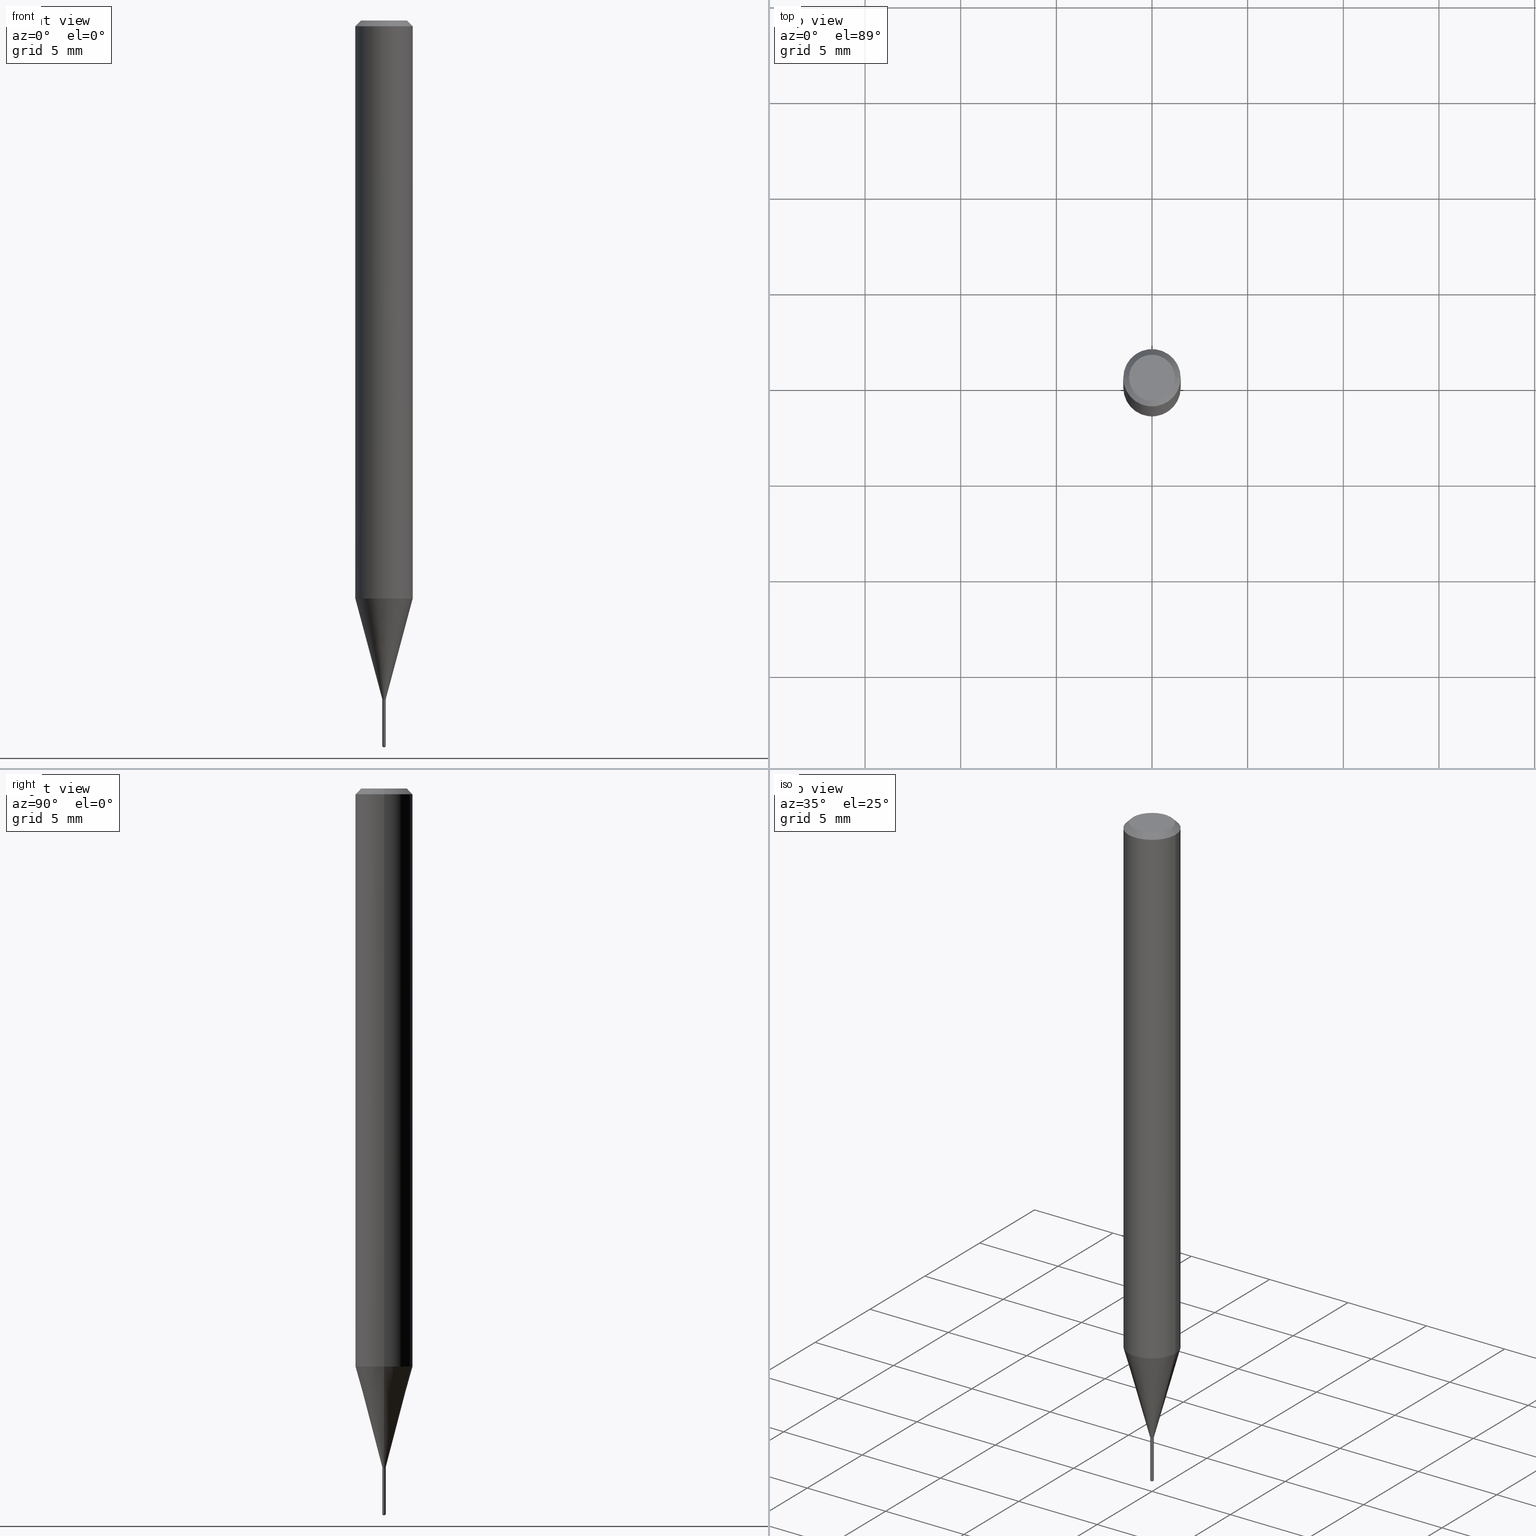
[diagram: canonical four-view strip — front | top / right | iso, engineering-drawing reading convention]
A machine part, canonical four-view strip (front | top / right | iso — engineering-drawing reading convention). The complete STEP part file that produces these views, byte-faithful:
ISO-10303-21;
HEADER;
FILE_DESCRIPTION (( 'STEP AP203' ),
    '1' );
FILE_NAME ('08242.STEP',
    '2024-04-24T13:54:28',
    ( '' ),
    ( '' ),
    'SwSTEP 2.0',
    'SolidWorks 2023',
    '' );
FILE_SCHEMA (( 'CONFIG_CONTROL_DESIGN' ));
ENDSEC;

DATA;
#1 = EDGE_LOOP ( 'NONE', ( #207, #292, #145 ) ) ;
#2 = APPROVAL_DATE_TIME ( #33, #22 ) ;
#3 = ORIENTED_EDGE ( 'NONE', *, *, #41, .T. ) ;
#4 = ADVANCED_FACE ( 'NONE', ( #255 ), #309, .T. ) ;
#5 = COORDINATED_UNIVERSAL_TIME_OFFSET ( 5, 0, .BEHIND. ) ;
#6 = DIRECTION ( 'NONE',  ( -2.445468806185136877E-29, 3.491481338843145188E-15, 1.000000000000000000 ) ) ;
#7 = ADVANCED_FACE ( 'NONE', ( #37 ), #468, .T. ) ;
#8 = LOCAL_TIME ( 9, 54, 28.00000000000000000, #157 ) ;
#9 = DIRECTION ( 'NONE',  ( 1.000000000000000000, -6.982962677686266711E-15, 4.876176775795935232E-29 ) ) ;
#10 = CALENDAR_DATE ( 2024, 24, 4 ) ;
#11 = CARTESIAN_POINT ( 'NONE',  ( 3.418031750404965246E-29, -4.880043467301064347E-15, -1.397699999999999942 ) ) ;
#12 = FACE_OUTER_BOUND ( 'NONE', #25, .T. ) ;
#13 = PRODUCT_RELATED_PRODUCT_CATEGORY ( 'detail', '', ( #142 ) ) ;
#14 = CIRCLE ( 'NONE', #271, 0.003549999999999997602 ) ;
#15 = DIRECTION ( 'NONE',  ( 1.000000000000000000, -6.982962677686266711E-15, 4.876176775795935232E-29 ) ) ;
#16 = MANIFOLD_SOLID_BREP ( 'Body-Move/Copy2[1]', #240 ) ;
#17 = DIRECTION ( 'NONE',  ( -2.445468806185136597E-29, 3.491481338843145583E-15, 1.000000000000000000 ) ) ;
#18 = ADVANCED_FACE ( 'NONE', ( #75 ), #452, .T. ) ;
#19 = EDGE_CURVE ( 'NONE', #433, #321, #377, .T. ) ;
#20 = DIRECTION ( 'NONE',  ( 2.445468806185136597E-29, -3.491481338843145583E-15, -1.000000000000000000 ) ) ;
#21 = ORIENTED_EDGE ( 'NONE', *, *, #177, .F. ) ;
#22 = APPROVAL ( #188, 'UNSPECIFIED' ) ;
#23 = CARTESIAN_POINT ( 'NONE',  ( 3.416809016001873005E-29, -4.878297726631642843E-15, -1.397199999999999998 ) ) ;
#24 = CONICAL_SURFACE ( 'NONE', #110, 0.05904999999999999832, 0.7853981633974452814 ) ;
#25 = EDGE_LOOP ( 'NONE', ( #376, #185 ) ) ;
#26 = APPLICATION_CONTEXT ( 'configuration controlled 3d designs of mechanical parts and assemblies' ) ;
#27 = DIRECTION ( 'NONE',  ( -2.445468806185136597E-29, 3.491481338843145583E-15, 1.000000000000000000 ) ) ;
#28 = ORIENTED_EDGE ( 'NONE', *, *, #469, .F. ) ;
#29 = CARTESIAN_POINT ( 'NONE',  ( -0.003050000000000000194, -4.858371913860381312E-15, -1.397699999999999942 ) ) ;
#30 = EDGE_LOOP ( 'NONE', ( #135, #73, #285, #474 ) ) ;
#31 = DIRECTION ( 'NONE',  ( -0.7071067811866172947, 7.493145998870606596E-15, 0.7071067811864777397 ) ) ;
#32 = VERTEX_POINT ( 'NONE', #40 ) ;
#33 = DATE_AND_TIME ( #67, #204 ) ;
#34 = CARTESIAN_POINT ( 'NONE',  ( 2.888098660104663766E-31, -4.123439461173779647E-17, -0.01181000000000007044 ) ) ;
#35 = DIRECTION ( 'NONE',  ( 1.000000000000000000, -6.982962677686126293E-15, 0.000000000000000000 ) ) ;
#36 = ORIENTED_EDGE ( 'NONE', *, *, #477, .F. ) ;
#37 = FACE_OUTER_BOUND ( 'NONE', #488, .T. ) ;
#38 = AXIS2_PLACEMENT_3D ( 'NONE', #39, #225, #333 ) ;
#39 = CARTESIAN_POINT ( 'NONE',  ( 0.000000000000000000, 0.000000000000000000, 0.000000000000000000 ) ) ;
#40 = CARTESIAN_POINT ( 'NONE',  ( 2.522426711952008601E-17, 0.003549999999994783457, -1.493966944802452179 ) ) ;
#41 = EDGE_CURVE ( 'NONE', #226, #417, #345, .T. ) ;
#42 = DATE_TIME_ROLE ( 'creation_date' ) ;
#43 = DIRECTION ( 'NONE',  ( -2.438391634766764879E-29, 3.501616251121835716E-15, 1.000000000000000000 ) ) ;
#44 = CARTESIAN_POINT ( 'NONE',  ( 0.000000000000000000, 0.000000000000000000, 0.000000000000000000 ) ) ;
#45 = CIRCLE ( 'NONE', #489, 0.05905000000000014404 ) ;
#46 = CIRCLE ( 'NONE', #272, 0.003549999999999997602 ) ;
#47 = CALENDAR_DATE ( 2024, 24, 4 ) ;
#48 = SECURITY_CLASSIFICATION ( '', '', #197 ) ;
#49 = CARTESIAN_POINT ( 'NONE',  ( -0.05905000000000006771, 4.195754854663396409E-16, -2.904631170795525045E-30 ) ) ;
#50 = PERSON_AND_ORGANIZATION ( #283, #137 ) ;
#51 = CARTESIAN_POINT ( 'NONE',  ( 0.000000000000000000, 0.000000000000000000, 0.000000000000000000 ) ) ;
#52 = CARTESIAN_POINT ( 'NONE',  ( 3.415341734718161419E-29, -4.876202837828336250E-15, -1.396599999999999842 ) ) ;
#53 = AXIS2_PLACEMENT_3D ( 'NONE', #434, #216, #363 ) ;
#54 = CARTESIAN_POINT ( 'NONE',  ( -2.478951750574971943E-17, -0.003550000000005218252, -1.493966944802452179 ) ) ;
#55 = CARTESIAN_POINT ( 'NONE',  ( 0.003549999999999997602, -4.900992355334122390E-15, -1.396599999999999842 ) ) ;
#56 = EDGE_LOOP ( 'NONE', ( #339, #440, #101, #36 ) ) ;
#57 = DIRECTION ( 'NONE',  ( -2.445468806185136597E-29, 3.491481338843145583E-15, 1.000000000000000000 ) ) ;
#58 = ORIENTED_EDGE ( 'NONE', *, *, #315, .F. ) ;
#59 = CARTESIAN_POINT ( 'NONE',  ( -0.003050000000000000194, -4.855722686686270899E-15, -1.397699999999999942 ) ) ;
#60 = AXIS2_PLACEMENT_3D ( 'NONE', #308, #267, #126 ) ;
#61 = CIRCLE ( 'NONE', #117, 0.003549999999999998036 ) ;
#62 = EDGE_LOOP ( 'NONE', ( #393, #114, #21, #379 ) ) ;
#63 = CARTESIAN_POINT ( 'NONE',  ( 3.648077724774556569E-29, -5.238768073303377996E-15, -1.496099999999999985 ) ) ;
#64 = EDGE_LOOP ( 'NONE', ( #317, #260 ) ) ;
#65 = DIRECTION ( 'NONE',  ( 1.000000000000000000, -6.982962677686295898E-15, 0.000000000000000000 ) ) ;
#66 = ORIENTED_EDGE ( 'NONE', *, *, #19, .F. ) ;
#67 = CALENDAR_DATE ( 2024, 24, 4 ) ;
#68 = DIMENSIONAL_EXPONENTS ( 1.000000000000000000, 0.000000000000000000, 0.000000000000000000, 0.000000000000000000, 0.000000000000000000, 0.000000000000000000, 0.000000000000000000 ) ;
#69 = ORIENTED_EDGE ( 'NONE', *, *, #483, .F. ) ;
#70 = CIRCLE ( 'NONE', #288, 0.003550000000000000204 ) ;
#71 = DIRECTION ( 'NONE',  ( -2.438391634766764879E-29, 3.501616251121835322E-15, 1.000000000000000000 ) ) ;
#72 = ORIENTED_EDGE ( 'NONE', *, *, #111, .F. ) ;
#73 = ORIENTED_EDGE ( 'NONE', *, *, #408, .T. ) ;
#74 = APPLICATION_PROTOCOL_DEFINITION ( 'international standard', 'config_control_design', 1994, #268 ) ;
#75 = FACE_OUTER_BOUND ( 'NONE', #62, .T. ) ;
#76 = AXIS2_PLACEMENT_3D ( 'NONE', #306, #269, #194 ) ;
#77 = DIRECTION ( 'NONE',  ( -0.2588190451025211836, 5.211531920934547886E-15, 0.9659258262890679791 ) ) ;
#78 = DIRECTION ( 'NONE',  ( 1.000000000000000000, -6.982962677686266711E-15, 4.876185090822587894E-29 ) ) ;
#79 = CC_DESIGN_PERSON_AND_ORGANIZATION_ASSIGNMENT ( #420, #460, ( #328 ) ) ;
#80 = APPROVAL_ROLE ( '' ) ;
#81 = FACE_OUTER_BOUND ( 'NONE', #112, .T. ) ;
#82 = DIRECTION ( 'NONE',  ( -2.438391634766764879E-29, 3.501616251121835716E-15, 1.000000000000000000 ) ) ;
#83 = CONICAL_SURFACE ( 'NONE', #60, 65.52281426576847423, 1.029744258676654756 ) ;
#84 = CIRCLE ( 'NONE', #91, 0.003050000000000000194 ) ;
#85 = FACE_OUTER_BOUND ( 'NONE', #287, .T. ) ;
#86 = FACE_OUTER_BOUND ( 'NONE', #56, .T. ) ;
#87 = CALENDAR_DATE ( 2024, 24, 4 ) ;
#88 = EDGE_CURVE ( 'NONE', #32, #325, #147, .T. ) ;
#89 = PLANE ( 'NONE',  #129 ) ;
#90 = EDGE_CURVE ( 'NONE', #395, #360, #479, .T. ) ;
#91 = AXIS2_PLACEMENT_3D ( 'NONE', #115, #329, #35 ) ;
#92 = LINE ( 'NONE', #242, #462 ) ;
#93 = ADVANCED_FACE ( 'NONE', ( #183 ), #229, .T. ) ;
#94 = CARTESIAN_POINT ( 'NONE',  ( 3.416809016001873005E-29, -4.878297726631642843E-15, -1.397199999999999998 ) ) ;
#95 = ORIENTED_EDGE ( 'NONE', *, *, #111, .T. ) ;
#96 = DIRECTION ( 'NONE',  ( -1.000000000000000000, 6.982962677686265922E-15, -4.876176775795935793E-29 ) ) ;
#97 = ORIENTED_EDGE ( 'NONE', *, *, #176, .T. ) ;
#98 = DIRECTION ( 'NONE',  ( 1.000000000000000000, -6.982962677686272233E-15, 0.000000000000000000 ) ) ;
#99 = CIRCLE ( 'NONE', #76, 0.003550000000000000204 ) ;
#100 = VECTOR ( 'NONE', #107, 39.37007874015748143 ) ;
#101 = ORIENTED_EDGE ( 'NONE', *, *, #355, .F. ) ;
#102 = FACE_OUTER_BOUND ( 'NONE', #64, .T. ) ;
#103 = VERTEX_POINT ( 'NONE', #486 ) ;
#104 = CARTESIAN_POINT ( 'NONE',  ( -0.003549999999999997602, -4.850978570708852316E-15, -1.396599999999999842 ) ) ;
#105 = EDGE_CURVE ( 'NONE', #103, #180, #45, .T. ) ;
#106 = VERTEX_POINT ( 'NONE', #457 ) ;
#107 = DIRECTION ( 'NONE',  ( -2.445468806185136877E-29, 3.491481338843145188E-15, 1.000000000000000000 ) ) ;
#108 = AXIS2_PLACEMENT_3D ( 'NONE', #424, #381, #119 ) ;
#109 = DIRECTION ( 'NONE',  ( -6.982962677686264344E-15, -1.000000000000000000, 3.468864327941591848E-15 ) ) ;
#110 = AXIS2_PLACEMENT_3D ( 'NONE', #250, #20, #166 ) ;
#111 = EDGE_CURVE ( 'NONE', #417, #153, #14, .T. ) ;
#112 = EDGE_LOOP ( 'NONE', ( #265, #246, #435, #217 ) ) ;
#113 =( NAMED_UNIT ( * ) PLANE_ANGLE_UNIT ( ) SI_UNIT ( $, .RADIAN. ) );
#114 = ORIENTED_EDGE ( 'NONE', *, *, #88, .T. ) ;
#115 = CARTESIAN_POINT ( 'NONE',  ( 3.418031750404965246E-29, -4.880043467301064347E-15, -1.397699999999999942 ) ) ;
#116 = DIRECTION ( 'NONE',  ( 1.000000000000000000, -6.982962677686266711E-15, 0.000000000000000000 ) ) ;
#117 = AXIS2_PLACEMENT_3D ( 'NONE', #23, #247, #65 ) ;
#118 = DIRECTION ( 'NONE',  ( -2.445468806185136597E-29, 3.491481338843145583E-15, 1.000000000000000000 ) ) ;
#119 = DIRECTION ( 'NONE',  ( 1.000000000000000000, -6.982962677686126293E-15, 0.000000000000000000 ) ) ;
#120 = PRODUCT_DEFINITION_SHAPE ( 'NONE', 'NONE',  #127 ) ;
#121 = SHAPE_DEFINITION_REPRESENTATION ( #120, #294 ) ;
#122 = LINE ( 'NONE', #49, #337 ) ;
#123 = VECTOR ( 'NONE', #322, 39.37007874015748854 ) ;
#124 = CC_DESIGN_SECURITY_CLASSIFICATION ( #48, ( #328 ) ) ;
#125 = LINE ( 'NONE', #237, #266 ) ;
#126 = DIRECTION ( 'NONE',  ( -6.982962677686264344E-15, -1.000000000000000000, 3.468864327941591848E-15 ) ) ;
#127 = PRODUCT_DEFINITION ( 'UNKNOWN', '', #328, #456 ) ;
#128 = CARTESIAN_POINT ( 'NONE',  ( 3.418031750404965246E-29, -4.880043467301064347E-15, -1.397699999999999942 ) ) ;
#129 = AXIS2_PLACEMENT_3D ( 'NONE', #311, #465, #239 ) ;
#130 = CARTESIAN_POINT ( 'NONE',  ( 2.908814666986231247E-29, -4.153016428689947803E-15, -1.189471180179926924 ) ) ;
#131 = ORIENTED_EDGE ( 'NONE', *, *, #212, .F. ) ;
#132 = DIRECTION ( 'NONE',  ( -2.438391634766764879E-29, 3.501616251121835716E-15, 1.000000000000000000 ) ) ;
#133 = EDGE_LOOP ( 'NONE', ( #221, #175, #173, #138 ) ) ;
#134 = FACE_OUTER_BOUND ( 'NONE', #358, .T. ) ;
#135 = ORIENTED_EDGE ( 'NONE', *, *, #331, .F. ) ;
#136 = LINE ( 'NONE', #432, #123 ) ;
#137 = ORGANIZATION ( 'UNSPECIFIED', 'UNSPECIFIED', '' ) ;
#138 = ORIENTED_EDGE ( 'NONE', *, *, #353, .F. ) ;
#139 = ADVANCED_FACE ( 'NONE', ( #86 ), #352, .T. ) ;
#140 = DIRECTION ( 'NONE',  ( 6.090539988449781591E-15, 0.8571673007021143320, 0.5150380749100510469 ) ) ;
#141 = VERTEX_POINT ( 'NONE', #201 ) ;
#142 = PRODUCT ( '08242', '08242', '', ( #262 ) ) ;
#143 = LENGTH_MEASURE_WITH_UNIT ( LENGTH_MEASURE( 0.02539999999999999897 ), #291 );
#144 = APPROVAL ( #274, 'UNSPECIFIED' ) ;
#145 = ORIENTED_EDGE ( 'NONE', *, *, #261, .F. ) ;
#146 = AXIS2_PLACEMENT_3D ( 'NONE', #418, #158, #15 ) ;
#147 = LINE ( 'NONE', #412, #203 ) ;
#148 = AXIS2_PLACEMENT_3D ( 'NONE', #198, #387, #461 ) ;
#149 = CARTESIAN_POINT ( 'NONE',  ( 2.888098660104663766E-31, -4.123439461173779647E-17, -0.01181000000000007044 ) ) ;
#150 = COORDINATED_UNIVERSAL_TIME_OFFSET ( 5, 0, .BEHIND. ) ;
#151 = CARTESIAN_POINT ( 'NONE',  ( 3.418031750404965246E-29, -4.880043467301064347E-15, -1.397699999999999942 ) ) ;
#152 = DATE_AND_TIME ( #346, #196 ) ;
#153 = VERTEX_POINT ( 'NONE', #205 ) ;
#154 = AXIS2_PLACEMENT_3D ( 'NONE', #128, #27, #214 ) ;
#155 = ADVANCED_FACE ( 'NONE', ( #164 ), #83, .T. ) ;
#156 = CYLINDRICAL_SURFACE ( 'NONE', #383, 0.05905000000000006771 ) ;
#157 = COORDINATED_UNIVERSAL_TIME_OFFSET ( 5, 0, .BEHIND. ) ;
#158 = DIRECTION ( 'NONE',  ( -2.445468806185136597E-29, 3.491481338843145583E-15, 1.000000000000000000 ) ) ;
#159 = APPROVAL ( #425, 'UNSPECIFIED' ) ;
#160 = APPROVAL_DATE_TIME ( #382, #159 ) ;
#161 = DIRECTION ( 'NONE',  ( -6.982962677686265922E-15, -1.000000000000000000, 0.000000000000000000 ) ) ;
#162 = AXIS2_PLACEMENT_3D ( 'NONE', #51, #199, #9 ) ;
#163 = PERSON_AND_ORGANIZATION_ROLE ( 'classification_officer' ) ;
#164 = FACE_OUTER_BOUND ( 'NONE', #1, .T. ) ;
#165 = DIRECTION ( 'NONE',  ( -6.982962677686266711E-15, -1.000000000000000000, 0.000000000000000000 ) ) ;
#166 = DIRECTION ( 'NONE',  ( -1.000000000000000000, 6.982962677686266711E-15, 0.000000000000000000 ) ) ;
#167 = ORIENTED_EDGE ( 'NONE', *, *, #41, .F. ) ;
#168 = CIRCLE ( 'NONE', #362, 0.003550000000000001071 ) ;
#169 = DIRECTION ( 'NONE',  ( -2.445468806185136597E-29, 3.491481338843145583E-15, 1.000000000000000000 ) ) ;
#170 = ADVANCED_FACE ( 'NONE', ( #351 ), #349, .T. ) ;
#171 = ORIENTED_EDGE ( 'NONE', *, *, #403, .T. ) ;
#172 = DIRECTION ( 'NONE',  ( 1.000000000000000000, -6.982962677686266711E-15, 4.876185090822587894E-29 ) ) ;
#173 = ORIENTED_EDGE ( 'NONE', *, *, #315, .T. ) ;
#174 = CARTESIAN_POINT ( 'NONE',  ( -0.05904999999999999832, -1.677549926184502089E-15, -0.01181000000000007044 ) ) ;
#175 = ORIENTED_EDGE ( 'NONE', *, *, #332, .T. ) ;
#176 = EDGE_CURVE ( 'NONE', #180, #360, #122, .T. ) ;
#177 = EDGE_CURVE ( 'NONE', #106, #325, #99, .T. ) ;
#178 = CARTESIAN_POINT ( 'NONE',  ( 0.000000000000000000, 0.000000000000000000, 0.000000000000000000 ) ) ;
#179 = AXIS2_PLACEMENT_3D ( 'NONE', #466, #132, #478 ) ;
#180 = VERTEX_POINT ( 'NONE', #356 ) ;
#181 = CC_DESIGN_PERSON_AND_ORGANIZATION_ASSIGNMENT ( #441, #406, ( #142 ) ) ;
#182 = COORDINATED_UNIVERSAL_TIME_OFFSET ( 5, 0, .BEHIND. ) ;
#183 = FACE_OUTER_BOUND ( 'NONE', #364, .T. ) ;
#184 = FACE_OUTER_BOUND ( 'NONE', #401, .T. ) ;
#185 = ORIENTED_EDGE ( 'NONE', *, *, #192, .T. ) ;
#186 = CARTESIAN_POINT ( 'NONE',  ( -9.234170117284283212E-28, 1.326343050180702537E-13, 37.87397874015748300 ) ) ;
#187 = VECTOR ( 'NONE', #281, 39.37007874015748143 ) ;
#188 = APPROVAL_STATUS ( 'not_yet_approved' ) ;
#189 = CARTESIAN_POINT ( 'NONE',  ( 8.265746106709734507E-48, -1.180129479067563789E-33, -3.380025165646692144E-19 ) ) ;
#190 = COORDINATED_UNIVERSAL_TIME_OFFSET ( 5, 0, .BEHIND. ) ;
#191 = DIRECTION ( 'NONE',  ( -6.982962677686265922E-15, -1.000000000000000000, 0.000000000000000000 ) ) ;
#192 = EDGE_CURVE ( 'NONE', #325, #106, #70, .T. ) ;
#193 = ADVANCED_FACE ( 'NONE', ( #273 ), #389, .F. ) ;
#194 = DIRECTION ( 'NONE',  ( -6.982962677686265922E-15, -1.000000000000000000, 0.000000000000000000 ) ) ;
#195 = AXIS2_PLACEMENT_3D ( 'NONE', #284, #437, #172 ) ;
#196 = LOCAL_TIME ( 9, 54, 28.00000000000000000, #190 ) ;
#197 = SECURITY_CLASSIFICATION_LEVEL ( 'unclassified' ) ;
#198 = CARTESIAN_POINT ( 'NONE',  ( 3.418031750404965246E-29, -4.880043467301064347E-15, -1.397699999999999942 ) ) ;
#199 = DIRECTION ( 'NONE',  ( -2.445468806185136597E-29, 3.491481338843145583E-15, 1.000000000000000000 ) ) ;
#200 = PERSON_AND_ORGANIZATION ( #283, #137 ) ;
#201 = CARTESIAN_POINT ( 'NONE',  ( 0.003050000000000000194, -4.901341503468007479E-15, -1.397699999999999942 ) ) ;
#202 = CC_DESIGN_DATE_AND_TIME_ASSIGNMENT ( #344, #42, ( #127 ) ) ;
#203 = VECTOR ( 'NONE', #295, 39.37007874015748143 ) ;
#204 = LOCAL_TIME ( 9, 54, 28.00000000000000000, #150 ) ;
#205 = CARTESIAN_POINT ( 'NONE',  ( -0.003549999999999997602, -4.852026015110506796E-15, -1.396599999999999842 ) ) ;
#206 = DIRECTION ( 'NONE',  ( 1.000000000000000000, -6.982962677686296687E-15, 0.000000000000000000 ) ) ;
#207 = ORIENTED_EDGE ( 'NONE', *, *, #388, .F. ) ;
#208 = LINE ( 'NONE', #63, #482 ) ;
#209 = ORIENTED_EDGE ( 'NONE', *, *, #233, .T. ) ;
#210 = AXIS2_PLACEMENT_3D ( 'NONE', #189, #407, #78 ) ;
#211 = CIRCLE ( 'NONE', #154, 0.003050000000000000194 ) ;
#212 = EDGE_CURVE ( 'NONE', #32, #253, #168, .T. ) ;
#213 = APPROVAL_PERSON_ORGANIZATION ( #427, #159, #455 ) ;
#214 = DIRECTION ( 'NONE',  ( 1.000000000000000000, -6.982962677686126293E-15, 0.000000000000000000 ) ) ;
#215 = ORIENTED_EDGE ( 'NONE', *, *, #342, .F. ) ;
#216 = DIRECTION ( 'NONE',  ( -2.445468806185136597E-29, 3.491481338843145583E-15, 1.000000000000000000 ) ) ;
#217 = ORIENTED_EDGE ( 'NONE', *, *, #403, .F. ) ;
#218 = CARTESIAN_POINT ( 'NONE',  ( 3.415341734718161419E-29, -4.876202837828336250E-15, -1.396599999999999842 ) ) ;
#219 = VERTEX_POINT ( 'NONE', #307 ) ;
#220 = DIRECTION ( 'NONE',  ( 0.000000000000000000, 0.000000000000000000, 1.000000000000000000 ) ) ;
#221 = ORIENTED_EDGE ( 'NONE', *, *, #176, .F. ) ;
#222 = CARTESIAN_POINT ( 'NONE',  ( 3.668034727918996305E-29, -5.210436939519526986E-15, -1.496099999999999985 ) ) ;
#223 = DIRECTION ( 'NONE',  ( 2.445468806185136597E-29, -3.491481338843145583E-15, -1.000000000000000000 ) ) ;
#224 = ADVANCED_FACE ( 'NONE', ( #81 ), #279, .T. ) ;
#225 = DIRECTION ( 'NONE',  ( -2.445468806185136597E-29, 3.491481338843145583E-15, 1.000000000000000000 ) ) ;
#226 = VERTEX_POINT ( 'NONE', #270 ) ;
#227 = ORIENTED_EDGE ( 'NONE', *, *, #105, .F. ) ;
#228 = VECTOR ( 'NONE', #71, 39.37007874015748143 ) ;
#229 = CYLINDRICAL_SURFACE ( 'NONE', #318, 0.003550000000000000638 ) ;
#230 = ADVANCED_FACE ( 'NONE', ( #85 ), #236, .T. ) ;
#231 = DATE_AND_TIME ( #47, #348 ) ;
#232 = FACE_OUTER_BOUND ( 'NONE', #133, .T. ) ;
#233 = EDGE_CURVE ( 'NONE', #433, #360, #125, .T. ) ;
#234 = DIRECTION ( 'NONE',  ( 1.000000000000000000, -6.982962677686272233E-15, 0.000000000000000000 ) ) ;
#235 = AXIS2_PLACEMENT_3D ( 'NONE', #130, #169, #98 ) ;
#236 = CYLINDRICAL_SURFACE ( 'NONE', #162, 0.003549999999999997602 ) ;
#237 = CARTESIAN_POINT ( 'NONE',  ( -0.05904999999999999832, 3.711095515056362547E-16, -0.01181000000000007044 ) ) ;
#238 = APPROVAL_DATE_TIME ( #231, #144 ) ;
#239 = DIRECTION ( 'NONE',  ( 6.982962677686265922E-15, 1.000000000000000000, -3.501616251121835322E-15 ) ) ;
#240 = CLOSED_SHELL ( 'NONE', ( #18, #155, #7, #93, #244 ) ) ;
#241 = CONICAL_SURFACE ( 'NONE', #303, 0.003549999999999997602, 0.2617993877991499074 ) ;
#242 = CARTESIAN_POINT ( 'NONE',  ( 0.05904999999999999832, -4.463468013801466955E-16, -0.01181000000000007044 ) ) ;
#243 = VERTEX_POINT ( 'NONE', #350 ) ;
#244 = ADVANCED_FACE ( 'NONE', ( #12 ), #89, .F. ) ;
#245 = FACE_OUTER_BOUND ( 'NONE', #290, .T. ) ;
#246 = ORIENTED_EDGE ( 'NONE', *, *, #342, .T. ) ;
#247 = DIRECTION ( 'NONE',  ( -2.445468806185136597E-29, 3.491481338843145583E-15, 1.000000000000000000 ) ) ;
#248 = CLOSED_SHELL ( 'NONE', ( #139, #4, #438, #313, #170, #230, #405, #258, #369, #396, #193, #224 ) ) ;
#249 = VECTOR ( 'NONE', #140, 39.37007874015747433 ) ;
#250 = CARTESIAN_POINT ( 'NONE',  ( 2.888098660104663766E-31, -4.123439461173779647E-17, -0.01181000000000007044 ) ) ;
#251 = ORIENTED_EDGE ( 'NONE', *, *, #332, .F. ) ;
#252 = PLANE ( 'NONE',  #453 ) ;
#253 = VERTEX_POINT ( 'NONE', #54 ) ;
#254 = DIRECTION ( 'NONE',  ( 1.000000000000000000, 0.000000000000000000, 0.000000000000000000 ) ) ;
#255 = FACE_OUTER_BOUND ( 'NONE', #30, .T. ) ;
#256 = AXIS2_PLACEMENT_3D ( 'NONE', #11, #386, #384 ) ;
#257 = ORIENTED_EDGE ( 'NONE', *, *, #88, .F. ) ;
#258 = ADVANCED_FACE ( 'NONE', ( #232 ), #156, .T. ) ;
#259 = ORIENTED_EDGE ( 'NONE', *, *, #298, .F. ) ;
#260 = ORIENTED_EDGE ( 'NONE', *, *, #331, .T. ) ;
#261 = EDGE_CURVE ( 'NONE', #253, #32, #481, .T. ) ;
#262 = MECHANICAL_CONTEXT ( 'NONE', #268, 'mechanical' ) ;
#263 = AXIS2_PLACEMENT_3D ( 'NONE', #34, #341, #116 ) ;
#264 = CIRCLE ( 'NONE', #195, 0.04724000000000000421 ) ;
#265 = ORIENTED_EDGE ( 'NONE', *, *, #277, .F. ) ;
#266 = VECTOR ( 'NONE', #275, 39.37007874015748143 ) ;
#267 = DIRECTION ( 'NONE',  ( -2.438391634766764879E-29, 3.501616251121835716E-15, 1.000000000000000000 ) ) ;
#268 = APPLICATION_CONTEXT ( 'configuration controlled 3d designs of mechanical parts and assemblies' ) ;
#269 = DIRECTION ( 'NONE',  ( -2.438391634766764879E-29, 3.501616251121835716E-15, 1.000000000000000000 ) ) ;
#270 = CARTESIAN_POINT ( 'NONE',  ( 0.003549999999999998036, -4.903087244137429772E-15, -1.397199999999999998 ) ) ;
#271 = AXIS2_PLACEMENT_3D ( 'NONE', #52, #17, #428 ) ;
#272 = AXIS2_PLACEMENT_3D ( 'NONE', #400, #357, #206 ) ;
#273 = FACE_OUTER_BOUND ( 'NONE', #300, .T. ) ;
#274 = APPROVAL_STATUS ( 'not_yet_approved' ) ;
#275 = DIRECTION ( 'NONE',  ( -0.7071067811865453523, 2.468850131082234184E-15, -0.7071067811865496822 ) ) ;
#276 = CARTESIAN_POINT ( 'NONE',  ( 3.415341734718161419E-29, -4.876202837828336250E-15, -1.396599999999999842 ) ) ;
#277 = EDGE_CURVE ( 'NONE', #330, #243, #286, .T. ) ;
#278 = AXIS2_PLACEMENT_3D ( 'NONE', #151, #336, #297 ) ;
#279 = CONICAL_SURFACE ( 'NONE', #148, 0.003050000000000000194, 0.7853981633975469778 ) ;
#280 = CC_DESIGN_APPROVAL ( #144, ( #328 ) ) ;
#281 = DIRECTION ( 'NONE',  ( -2.445468806185136877E-29, 3.491481338843145188E-15, 1.000000000000000000 ) ) ;
#282 = ORIENTED_EDGE ( 'NONE', *, *, #355, .T. ) ;
#283 = PERSON ( 'UNSPECIFIED', 'UNSPECIFIED', 'UNSPECIFIED', ('UNSPECIFIED'), ('UNSPECIFIED'), ('UNSPECIFIED') ) ;
#284 = CARTESIAN_POINT ( 'NONE',  ( 8.265746106709734507E-48, -1.180129479067563789E-33, -3.380025165646692144E-19 ) ) ;
#285 = ORIENTED_EDGE ( 'NONE', *, *, #90, .T. ) ;
#286 = LINE ( 'NONE', #29, #409 ) ;
#287 = EDGE_LOOP ( 'NONE', ( #69, #171, #3, #259 ) ) ;
#288 = AXIS2_PLACEMENT_3D ( 'NONE', #347, #82, #161 ) ;
#289 = CARTESIAN_POINT ( 'NONE',  ( 0.04724000000000000421, -3.852183633974369345E-16, -3.380025165621689721E-19 ) ) ;
#290 = EDGE_LOOP ( 'NONE', ( #95, #471, #227, #323 ) ) ;
#291 =( LENGTH_UNIT ( ) NAMED_UNIT ( * ) SI_UNIT ( $, .METRE. ) );
#292 = ORIENTED_EDGE ( 'NONE', *, *, #442, .T. ) ;
#293 = ORIENTED_EDGE ( 'NONE', *, *, #90, .F. ) ;
#294 = ADVANCED_BREP_SHAPE_REPRESENTATION ( '08242', ( #16, #343, #354 ), #390 ) ;
#295 = DIRECTION ( 'NONE',  ( -2.438391634766764879E-29, 3.501616251121835322E-15, 1.000000000000000000 ) ) ;
#296 = CARTESIAN_POINT ( 'NONE',  ( 0.003050000000000000194, -4.901341503468007479E-15, -1.397699999999999942 ) ) ;
#297 = DIRECTION ( 'NONE',  ( -6.982962677686265922E-15, -1.000000000000000000, 0.000000000000000000 ) ) ;
#298 = EDGE_CURVE ( 'NONE', #153, #417, #46, .T. ) ;
#299 = PERSON_AND_ORGANIZATION ( #283, #137 ) ;
#300 = EDGE_LOOP ( 'NONE', ( #28, #215 ) ) ;
#301 = CC_DESIGN_PERSON_AND_ORGANIZATION_ASSIGNMENT ( #299, #451, ( #127 ) ) ;
#302 = AXIS2_PLACEMENT_3D ( 'NONE', #149, #223, #449 ) ;
#303 = AXIS2_PLACEMENT_3D ( 'NONE', #218, #316, #429 ) ;
#304 = ORIENTED_EDGE ( 'NONE', *, *, #312, .T. ) ;
#305 = PERSON_AND_ORGANIZATION ( #283, #137 ) ;
#306 = CARTESIAN_POINT ( 'NONE',  ( 3.418031750404965246E-29, -4.880043467301064347E-15, -1.397699999999999942 ) ) ;
#307 = CARTESIAN_POINT ( 'NONE',  ( 3.648077724774556569E-29, -5.238768073303377996E-15, -1.496099999999999985 ) ) ;
#308 = CARTESIAN_POINT ( 'NONE',  ( -9.234170117284283212E-28, 1.326343050180702537E-13, 37.87397874015748300 ) ) ;
#309 = CONICAL_SURFACE ( 'NONE', #302, 0.05904999999999999832, 0.7853981633974452814 ) ;
#310 = VECTOR ( 'NONE', #77, 39.37007874015748854 ) ;
#311 = CARTESIAN_POINT ( 'NONE',  ( 3.418031750404965246E-29, -4.880043467301064347E-15, -1.397699999999999942 ) ) ;
#312 = EDGE_CURVE ( 'NONE', #417, #103, #136, .T. ) ;
#313 = ADVANCED_FACE ( 'NONE', ( #245 ), #446, .T. ) ;
#314 = DIRECTION ( 'NONE',  ( 1.000000000000000000, -6.982962677686296687E-15, 0.000000000000000000 ) ) ;
#315 = EDGE_CURVE ( 'NONE', #103, #395, #473, .T. ) ;
#316 = DIRECTION ( 'NONE',  ( -2.445468806185136597E-29, 3.491481338843145583E-15, 1.000000000000000000 ) ) ;
#317 = ORIENTED_EDGE ( 'NONE', *, *, #19, .T. ) ;
#318 = AXIS2_PLACEMENT_3D ( 'NONE', #380, #43, #191 ) ;
#319 = AXIS2_PLACEMENT_3D ( 'NONE', #94, #57, #475 ) ;
#320 = DIRECTION ( 'NONE',  ( -2.445468806185136597E-29, 3.491481338843145583E-15, 1.000000000000000000 ) ) ;
#321 = VERTEX_POINT ( 'NONE', #289 ) ;
#322 = DIRECTION ( 'NONE',  ( 0.2588190451025211836, 1.565188264969622559E-15, 0.9659258262890679791 ) ) ;
#323 = ORIENTED_EDGE ( 'NONE', *, *, #312, .F. ) ;
#324 = CARTESIAN_POINT ( 'NONE',  ( 0.05904999999999999832, -4.535783407291118600E-16, -0.01181000000000007044 ) ) ;
#325 = VERTEX_POINT ( 'NONE', #467 ) ;
#326 = CIRCLE ( 'NONE', #319, 0.003549999999999998036 ) ;
#327 = CC_DESIGN_APPROVAL ( #22, ( #127 ) ) ;
#328 = PRODUCT_DEFINITION_FORMATION_WITH_SPECIFIED_SOURCE ( 'ANY', '', #142, .NOT_KNOWN. ) ;
#329 = DIRECTION ( 'NONE',  ( -2.445468806185136597E-29, 3.491481338843145583E-15, 1.000000000000000000 ) ) ;
#330 = VERTEX_POINT ( 'NONE', #59 ) ;
#331 = EDGE_CURVE ( 'NONE', #321, #433, #264, .T. ) ;
#332 = EDGE_CURVE ( 'NONE', #180, #103, #423, .T. ) ;
#333 = DIRECTION ( 'NONE',  ( 1.000000000000000000, -6.982962677686266711E-15, 4.876176775795936353E-29 ) ) ;
#334 = ORIENTED_EDGE ( 'NONE', *, *, #419, .T. ) ;
#335 = LINE ( 'NONE', #296, #431 ) ;
#336 = DIRECTION ( 'NONE',  ( -2.438391634766764879E-29, 3.501616251121835716E-15, 1.000000000000000000 ) ) ;
#337 = VECTOR ( 'NONE', #421, 39.37007874015748143 ) ;
#338 = LINE ( 'NONE', #104, #310 ) ;
#339 = ORIENTED_EDGE ( 'NONE', *, *, #469, .T. ) ;
#340 = APPROVAL_ROLE ( '' ) ;
#341 = DIRECTION ( 'NONE',  ( -2.445468806185136597E-29, 3.491481338843145583E-15, 1.000000000000000000 ) ) ;
#342 = EDGE_CURVE ( 'NONE', #330, #141, #211, .T. ) ;
#343 = MANIFOLD_SOLID_BREP ( 'Body-Move/Copy2[2]', #248 ) ;
#344 = DATE_AND_TIME ( #87, #472 ) ;
#345 = LINE ( 'NONE', #371, #430 ) ;
#346 = CALENDAR_DATE ( 2024, 24, 4 ) ;
#347 = CARTESIAN_POINT ( 'NONE',  ( 3.418031750404965246E-29, -4.880043467301064347E-15, -1.397699999999999942 ) ) ;
#348 = LOCAL_TIME ( 9, 54, 28.00000000000000000, #5 ) ;
#349 = CYLINDRICAL_SURFACE ( 'NONE', #146, 0.003549999999999997602 ) ;
#350 = CARTESIAN_POINT ( 'NONE',  ( -0.003549999999999998036, -4.852026015110506796E-15, -1.397199999999999998 ) ) ;
#351 = FACE_OUTER_BOUND ( 'NONE', #373, .T. ) ;
#352 = CONICAL_SURFACE ( 'NONE', #108, 0.003050000000000000194, 0.7853981633975469778 ) ;
#353 = EDGE_CURVE ( 'NONE', #360, #395, #470, .T. ) ;
#354 = AXIS2_PLACEMENT_3D ( 'NONE', #178, #220, #254 ) ;
#355 = EDGE_CURVE ( 'NONE', #226, #243, #326, .T. ) ;
#356 = CARTESIAN_POINT ( 'NONE',  ( -0.05905000000000014404, -3.733440943223607521E-15, -1.189471180179926924 ) ) ;
#357 = DIRECTION ( 'NONE',  ( -2.445468806185136597E-29, 3.491481338843145583E-15, 1.000000000000000000 ) ) ;
#358 = EDGE_LOOP ( 'NONE', ( #411, #66, #209, #398 ) ) ;
#359 = DIRECTION ( 'NONE',  ( 2.438088387897960049E-29, -3.491481338843145188E-15, -1.000000000000000000 ) ) ;
#360 = VERTEX_POINT ( 'NONE', #174 ) ;
#361 = AXIS2_PLACEMENT_3D ( 'NONE', #186, #450, #109 ) ;
#362 = AXIS2_PLACEMENT_3D ( 'NONE', #426, #463, #165 ) ;
#363 = DIRECTION ( 'NONE',  ( 1.000000000000000000, -6.982962677686266711E-15, 0.000000000000000000 ) ) ;
#364 = EDGE_LOOP ( 'NONE', ( #257, #414, #334, #484 ) ) ;
#365 = DIRECTION ( 'NONE',  ( -5.985567269335943646E-15, -0.8571673007021107793, 0.5150380749100569311 ) ) ;
#366 = EDGE_LOOP ( 'NONE', ( #443, #480, #304, #251 ) ) ;
#367 = DIRECTION ( 'NONE',  ( 1.000000000000000000, -6.982962677686266711E-15, 4.876176775795936353E-29 ) ) ;
#368 = ORIENTED_EDGE ( 'NONE', *, *, #105, .T. ) ;
#369 = ADVANCED_FACE ( 'NONE', ( #134 ), #24, .T. ) ;
#370 = LINE ( 'NONE', #444, #228 ) ;
#371 = CARTESIAN_POINT ( 'NONE',  ( 0.003549999999999997602, -2.478951750578622890E-17, 1.731042755407555784E-31 ) ) ;
#372 = CARTESIAN_POINT ( 'NONE',  ( -0.04724000000000000421, 3.504923541997677355E-16, -3.380025165670481712E-19 ) ) ;
#373 = EDGE_LOOP ( 'NONE', ( #282, #404, #72, #167 ) ) ;
#374 = UNCERTAINTY_MEASURE_WITH_UNIT (LENGTH_MEASURE( 1.000000000000000082E-05 ), #490, 'distance_accuracy_value', 'NONE');
#375 = DIRECTION ( 'NONE',  ( 0.7071067811866172947, -2.468850131082987546E-15, 0.7071067811864777397 ) ) ;
#376 = ORIENTED_EDGE ( 'NONE', *, *, #177, .T. ) ;
#377 = CIRCLE ( 'NONE', #210, 0.04724000000000000421 ) ;
#378 = PERSON_AND_ORGANIZATION ( #283, #137 ) ;
#379 = ORIENTED_EDGE ( 'NONE', *, *, #419, .F. ) ;
#380 = CARTESIAN_POINT ( 'NONE',  ( 3.418031750404965246E-29, -4.880043467301064347E-15, -1.397699999999999942 ) ) ;
#381 = DIRECTION ( 'NONE',  ( -2.445468806185136597E-29, 3.491481338843145583E-15, 1.000000000000000000 ) ) ;
#382 = DATE_AND_TIME ( #10, #8 ) ;
#383 = AXIS2_PLACEMENT_3D ( 'NONE', #44, #320, #367 ) ;
#384 = DIRECTION ( 'NONE',  ( 1.000000000000000000, -6.982962677686265922E-15, 4.876176775795935793E-29 ) ) ;
#385 = PERSON_AND_ORGANIZATION_ROLE ( 'design_supplier' ) ;
#386 = DIRECTION ( 'NONE',  ( -2.438088387897960049E-29, 3.491481338843145188E-15, 1.000000000000000000 ) ) ;
#387 = DIRECTION ( 'NONE',  ( -2.445468806185136597E-29, 3.491481338843145583E-15, 1.000000000000000000 ) ) ;
#388 = EDGE_CURVE ( 'NONE', #219, #253, #208, .T. ) ;
#389 = PLANE ( 'NONE',  #256 ) ;
#390 =( GEOMETRIC_REPRESENTATION_CONTEXT ( 3 ) GLOBAL_UNCERTAINTY_ASSIGNED_CONTEXT ( ( #374 ) ) GLOBAL_UNIT_ASSIGNED_CONTEXT ( ( #490, #113, #487 ) ) REPRESENTATION_CONTEXT ( 'NONE', 'WORKASPACE' ) );
#391 = CC_DESIGN_PERSON_AND_ORGANIZATION_ASSIGNMENT ( #50, #163, ( #48 ) ) ;
#392 = DIRECTION ( 'NONE',  ( 0.7071067811865453523, -7.319954787623248157E-15, -0.7071067811865496822 ) ) ;
#393 = ORIENTED_EDGE ( 'NONE', *, *, #261, .T. ) ;
#394 = CARTESIAN_POINT ( 'NONE',  ( 0.05905000000000006771, -4.123439461173745257E-16, 2.879382386107503723E-30 ) ) ;
#395 = VERTEX_POINT ( 'NONE', #324 ) ;
#396 = ADVANCED_FACE ( 'NONE', ( #102 ), #252, .F. ) ;
#397 = FACE_OUTER_BOUND ( 'NONE', #366, .T. ) ;
#398 = ORIENTED_EDGE ( 'NONE', *, *, #353, .T. ) ;
#399 = AXIS2_PLACEMENT_3D ( 'NONE', #276, #439, #314 ) ;
#400 = CARTESIAN_POINT ( 'NONE',  ( 3.415341734718161419E-29, -4.876202837828336250E-15, -1.396599999999999842 ) ) ;
#401 = EDGE_LOOP ( 'NONE', ( #368, #97, #293, #58 ) ) ;
#402 = CARTESIAN_POINT ( 'NONE',  ( 4.132873053354867254E-48, -5.900647395337818946E-34, -1.690012582823346072E-19 ) ) ;
#403 = EDGE_CURVE ( 'NONE', #243, #226, #61, .T. ) ;
#404 = ORIENTED_EDGE ( 'NONE', *, *, #483, .T. ) ;
#405 = ADVANCED_FACE ( 'NONE', ( #397 ), #241, .T. ) ;
#406 = PERSON_AND_ORGANIZATION_ROLE ( 'design_owner' ) ;
#407 = DIRECTION ( 'NONE',  ( -2.445468806185136597E-29, 3.491481338843145583E-15, 1.000000000000000000 ) ) ;
#408 = EDGE_CURVE ( 'NONE', #321, #395, #92, .T. ) ;
#409 = VECTOR ( 'NONE', #31, 39.37007874015748143 ) ;
#410 = LINE ( 'NONE', #222, #249 ) ;
#411 = ORIENTED_EDGE ( 'NONE', *, *, #408, .F. ) ;
#412 = CARTESIAN_POINT ( 'NONE',  ( 2.522426711951773791E-17, 0.003549999999995120427, -1.397699999999999942 ) ) ;
#413 = LINE ( 'NONE', #485, #100 ) ;
#414 = ORIENTED_EDGE ( 'NONE', *, *, #212, .T. ) ;
#415 = CYLINDRICAL_SURFACE ( 'NONE', #38, 0.05905000000000006771 ) ;
#416 = APPROVAL_PERSON_ORGANIZATION ( #378, #22, #340 ) ;
#417 = VERTEX_POINT ( 'NONE', #55 ) ;
#418 = CARTESIAN_POINT ( 'NONE',  ( 0.000000000000000000, 0.000000000000000000, 0.000000000000000000 ) ) ;
#419 = EDGE_CURVE ( 'NONE', #253, #106, #370, .T. ) ;
#420 = PERSON_AND_ORGANIZATION ( #283, #137 ) ;
#421 = DIRECTION ( 'NONE',  ( -2.445468806185136877E-29, 3.491481338843145188E-15, 1.000000000000000000 ) ) ;
#422 = CC_DESIGN_PERSON_AND_ORGANIZATION_ASSIGNMENT ( #305, #385, ( #328 ) ) ;
#423 = CIRCLE ( 'NONE', #235, 0.05905000000000014404 ) ;
#424 = CARTESIAN_POINT ( 'NONE',  ( 3.418031750404965246E-29, -4.880043467301064347E-15, -1.397699999999999942 ) ) ;
#425 = APPROVAL_STATUS ( 'not_yet_approved' ) ;
#426 = CARTESIAN_POINT ( 'NONE',  ( 3.652768263315818731E-29, -5.217133365667179722E-15, -1.493966944802452179 ) ) ;
#427 = PERSON_AND_ORGANIZATION ( #283, #137 ) ;
#428 = DIRECTION ( 'NONE',  ( 1.000000000000000000, -6.982962677686296687E-15, 0.000000000000000000 ) ) ;
#429 = DIRECTION ( 'NONE',  ( 1.000000000000000000, -6.982962677686296687E-15, 0.000000000000000000 ) ) ;
#430 = VECTOR ( 'NONE', #6, 39.37007874015748143 ) ;
#431 = VECTOR ( 'NONE', #375, 39.37007874015748143 ) ;
#432 = CARTESIAN_POINT ( 'NONE',  ( 0.003549999999999997602, -4.900992355334122390E-15, -1.396599999999999842 ) ) ;
#433 = VERTEX_POINT ( 'NONE', #372 ) ;
#434 = CARTESIAN_POINT ( 'NONE',  ( 2.888098660104663766E-31, -4.123439461173779647E-17, -0.01181000000000007044 ) ) ;
#435 = ORIENTED_EDGE ( 'NONE', *, *, #477, .T. ) ;
#436 = CC_DESIGN_DATE_AND_TIME_ASSIGNMENT ( #152, #458, ( #48 ) ) ;
#437 = DIRECTION ( 'NONE',  ( -2.445468806185136597E-29, 3.491481338843145583E-15, 1.000000000000000000 ) ) ;
#438 = ADVANCED_FACE ( 'NONE', ( #184 ), #415, .T. ) ;
#439 = DIRECTION ( 'NONE',  ( -2.445468806185136597E-29, 3.491481338843145583E-15, 1.000000000000000000 ) ) ;
#440 = ORIENTED_EDGE ( 'NONE', *, *, #277, .T. ) ;
#441 = PERSON_AND_ORGANIZATION ( #283, #137 ) ;
#442 = EDGE_CURVE ( 'NONE', #219, #32, #410, .T. ) ;
#443 = ORIENTED_EDGE ( 'NONE', *, *, #454, .F. ) ;
#444 = CARTESIAN_POINT ( 'NONE',  ( -2.478951750575206753E-17, -0.003550000000004880415, -1.397699999999999942 ) ) ;
#445 = ORIENTED_EDGE ( 'NONE', *, *, #388, .T. ) ;
#446 = CONICAL_SURFACE ( 'NONE', #399, 0.003549999999999997602, 0.2617993877991499074 ) ;
#447 = APPROVAL_PERSON_ORGANIZATION ( #200, #144, #80 ) ;
#448 = APPLICATION_PROTOCOL_DEFINITION ( 'international standard', 'config_control_design', 1994, #26 ) ;
#449 = DIRECTION ( 'NONE',  ( -1.000000000000000000, 6.982962677686266711E-15, 0.000000000000000000 ) ) ;
#450 = DIRECTION ( 'NONE',  ( -2.438391634766764879E-29, 3.501616251121835716E-15, 1.000000000000000000 ) ) ;
#451 = PERSON_AND_ORGANIZATION_ROLE ( 'creator' ) ;
#452 = CYLINDRICAL_SURFACE ( 'NONE', #278, 0.003550000000000000638 ) ;
#453 = AXIS2_PLACEMENT_3D ( 'NONE', #402, #359, #96 ) ;
#454 = EDGE_CURVE ( 'NONE', #153, #180, #338, .T. ) ;
#455 = APPROVAL_ROLE ( '' ) ;
#456 = DESIGN_CONTEXT ( 'detailed design', #26, 'design' ) ;
#457 = CARTESIAN_POINT ( 'NONE',  ( -2.478951750575206444E-17, -0.003550000000004879981, -1.397699999999999942 ) ) ;
#458 = DATE_TIME_ROLE ( 'classification_date' ) ;
#459 = CARTESIAN_POINT ( 'NONE',  ( 2.908814666986231247E-29, -4.153016428689947803E-15, -1.189471180179926924 ) ) ;
#460 = PERSON_AND_ORGANIZATION_ROLE ( 'creator' ) ;
#461 = DIRECTION ( 'NONE',  ( 1.000000000000000000, -6.982962677686126293E-15, 0.000000000000000000 ) ) ;
#462 = VECTOR ( 'NONE', #392, 39.37007874015748143 ) ;
#463 = DIRECTION ( 'NONE',  ( -2.438391634766764879E-29, 3.501616251121835716E-15, 1.000000000000000000 ) ) ;
#464 = CC_DESIGN_APPROVAL ( #159, ( #48 ) ) ;
#465 = DIRECTION ( 'NONE',  ( 2.438391634766764879E-29, -3.501616251121835322E-15, -1.000000000000000000 ) ) ;
#466 = CARTESIAN_POINT ( 'NONE',  ( 3.652768263315818731E-29, -5.217133365667179722E-15, -1.493966944802452179 ) ) ;
#467 = CARTESIAN_POINT ( 'NONE',  ( 2.522426711952010449E-17, 0.003549999999995119993, -1.397699999999999942 ) ) ;
#468 = CONICAL_SURFACE ( 'NONE', #361, 65.52281426576847423, 1.029744258676654756 ) ;
#469 = EDGE_CURVE ( 'NONE', #141, #330, #84, .T. ) ;
#470 = CIRCLE ( 'NONE', #53, 0.05904999999999999832 ) ;
#471 = ORIENTED_EDGE ( 'NONE', *, *, #454, .T. ) ;
#472 = LOCAL_TIME ( 9, 54, 28.00000000000000000, #182 ) ;
#473 = LINE ( 'NONE', #394, #187 ) ;
#474 = ORIENTED_EDGE ( 'NONE', *, *, #233, .F. ) ;
#475 = DIRECTION ( 'NONE',  ( 1.000000000000000000, -6.982962677686295898E-15, 0.000000000000000000 ) ) ;
#476 = ORIENTED_EDGE ( 'NONE', *, *, #442, .F. ) ;
#477 = EDGE_CURVE ( 'NONE', #141, #226, #335, .T. ) ;
#478 = DIRECTION ( 'NONE',  ( -6.982962677686266711E-15, -1.000000000000000000, 0.000000000000000000 ) ) ;
#479 = CIRCLE ( 'NONE', #263, 0.05904999999999999832 ) ;
#480 = ORIENTED_EDGE ( 'NONE', *, *, #298, .T. ) ;
#481 = CIRCLE ( 'NONE', #179, 0.003550000000000001071 ) ;
#482 = VECTOR ( 'NONE', #365, 39.37007874015748143 ) ;
#483 = EDGE_CURVE ( 'NONE', #243, #153, #413, .T. ) ;
#484 = ORIENTED_EDGE ( 'NONE', *, *, #192, .F. ) ;
#485 = CARTESIAN_POINT ( 'NONE',  ( -0.003549999999999997602, 2.522426711948353956E-17, -1.746221957040490115E-31 ) ) ;
#486 = CARTESIAN_POINT ( 'NONE',  ( 0.05905000000000014404, -4.565360374807322723E-15, -1.189471180179926924 ) ) ;
#487 =( NAMED_UNIT ( * ) SI_UNIT ( $, .STERADIAN. ) SOLID_ANGLE_UNIT ( ) );
#488 = EDGE_LOOP ( 'NONE', ( #476, #445, #131 ) ) ;
#489 = AXIS2_PLACEMENT_3D ( 'NONE', #459, #118, #234 ) ;
#490 =( CONVERSION_BASED_UNIT ( 'INCH', #143 ) LENGTH_UNIT ( ) NAMED_UNIT ( #68 ) );
ENDSEC;
END-ISO-10303-21;
